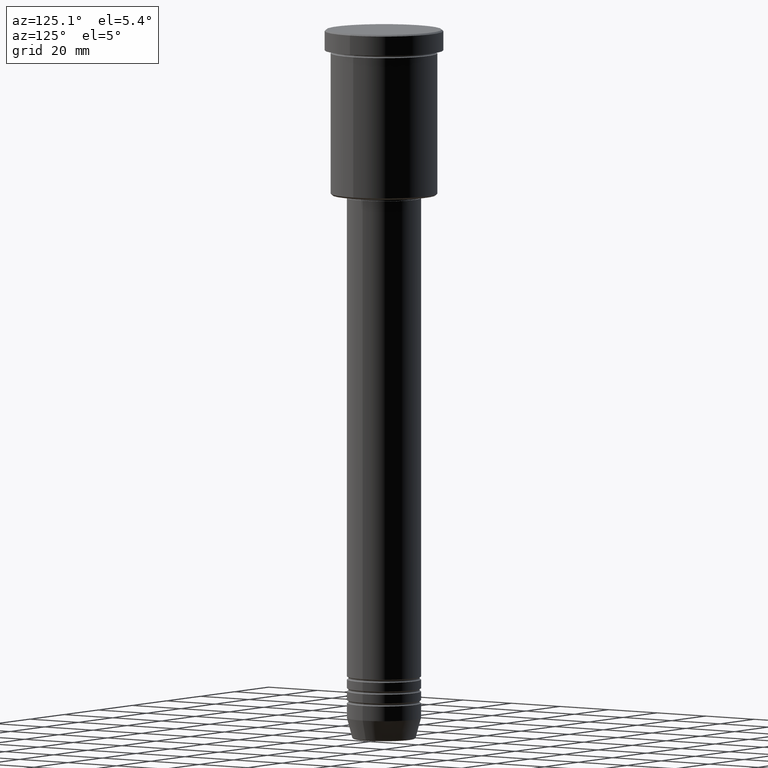
[diagram: clean part render]
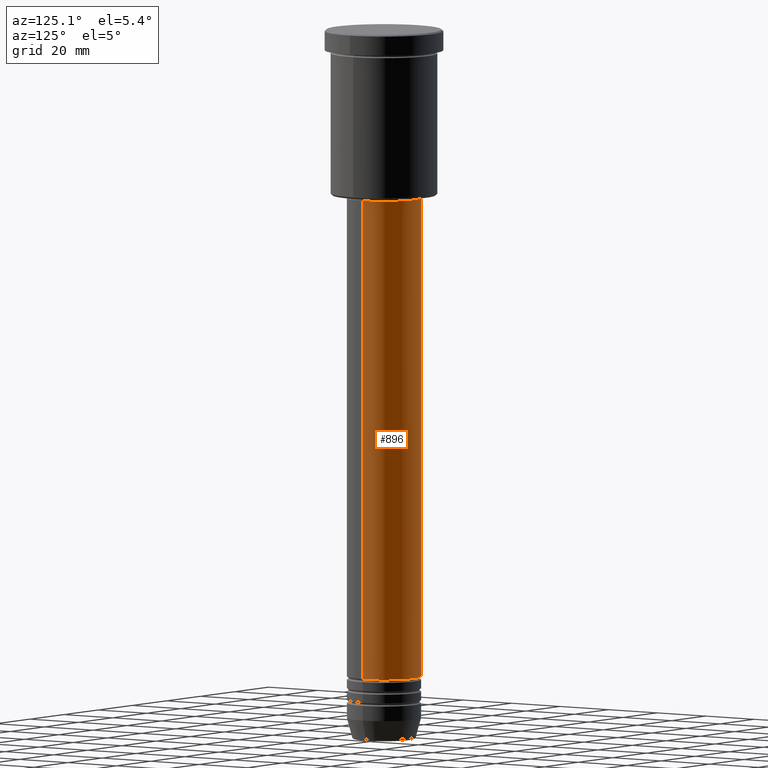
[diagram: same view with one face highlighted and labeled with its STEP entity id]
A machine part, auxiliary view. The second image highlights one B-rep face of the part: STEP entity #896.
In plain terms, the highlighted cylindrical surface (partial cylindrical patch) has radius 12.5 mm, axis along (-0, -0, 1).
Its self-contained STEP definition (entity closure, byte-faithful):
#1 = VERTEX_POINT ( 'NONE', #31 ) ;
#31 = CARTESIAN_POINT ( 'NONE',  ( -12.50000000000000000, 1.530808498934191521E-15, -57.00000000000002842 ) ) ;
#49 = EDGE_LOOP ( 'NONE', ( #733, #1107, #1129, #211 ) ) ;
#88 = DIRECTION ( 'NONE',  ( 1.000000000000000000, 0.000000000000000000, 0.000000000000000000 ) ) ;
#144 = CARTESIAN_POINT ( 'NONE',  ( 12.50000000000000000, 0.000000000000000000, 0.000000000000000000 ) ) ;
#153 = VERTEX_POINT ( 'NONE', #1064 ) ;
#211 = ORIENTED_EDGE ( 'NONE', *, *, #457, .F. ) ;
#273 = CIRCLE ( 'NONE', #321, 12.50000000000000000 ) ;
#282 = EDGE_CURVE ( 'NONE', #1099, #153, #273, .T. ) ;
#284 = CARTESIAN_POINT ( 'NONE',  ( 0.000000000000000000, 0.000000000000000000, 0.000000000000000000 ) ) ;
#288 = AXIS2_PLACEMENT_3D ( 'NONE', #284, #712, #1074 ) ;
#307 = DIRECTION ( 'NONE',  ( 1.000000000000000000, 0.000000000000000000, 0.000000000000000000 ) ) ;
#321 = AXIS2_PLACEMENT_3D ( 'NONE', #403, #854, #307 ) ;
#355 = AXIS2_PLACEMENT_3D ( 'NONE', #1170, #897, #88 ) ;
#403 = CARTESIAN_POINT ( 'NONE',  ( 0.000000000000000000, 0.000000000000000000, -219.0000000000000000 ) ) ;
#424 = CARTESIAN_POINT ( 'NONE',  ( 12.50000000000000000, 0.000000000000000000, -57.00000000000002842 ) ) ;
#457 = EDGE_CURVE ( 'NONE', #1099, #999, #631, .T. ) ;
#475 = CYLINDRICAL_SURFACE ( 'NONE', #288, 12.50000000000000000 ) ;
#520 = DIRECTION ( 'NONE',  ( -0.000000000000000000, -0.000000000000000000, 1.000000000000000000 ) ) ;
#599 = CIRCLE ( 'NONE', #355, 12.50000000000000000 ) ;
#631 = LINE ( 'NONE', #144, #824 ) ;
#656 = CARTESIAN_POINT ( 'NONE',  ( -12.50000000000000000, 1.530808498934191521E-15, 0.000000000000000000 ) ) ;
#688 = CARTESIAN_POINT ( 'NONE',  ( 12.50000000000000000, 0.000000000000000000, -219.0000000000000000 ) ) ;
#712 = DIRECTION ( 'NONE',  ( -0.000000000000000000, -0.000000000000000000, 1.000000000000000000 ) ) ;
#733 = ORIENTED_EDGE ( 'NONE', *, *, #282, .T. ) ;
#824 = VECTOR ( 'NONE', #837, 1000.000000000000000 ) ;
#837 = DIRECTION ( 'NONE',  ( -0.000000000000000000, -0.000000000000000000, 1.000000000000000000 ) ) ;
#854 = DIRECTION ( 'NONE',  ( -0.000000000000000000, -0.000000000000000000, 1.000000000000000000 ) ) ;
#896 = ADVANCED_FACE ( 'NONE', ( #978 ), #475, .T. ) ;
#897 = DIRECTION ( 'NONE',  ( -0.000000000000000000, -0.000000000000000000, 1.000000000000000000 ) ) ;
#978 = FACE_OUTER_BOUND ( 'NONE', #49, .T. ) ;
#999 = VERTEX_POINT ( 'NONE', #424 ) ;
#1064 = CARTESIAN_POINT ( 'NONE',  ( -12.50000000000000000, 1.530808498934191521E-15, -219.0000000000000000 ) ) ;
#1074 = DIRECTION ( 'NONE',  ( 1.000000000000000000, 0.000000000000000000, 0.000000000000000000 ) ) ;
#1078 = EDGE_CURVE ( 'NONE', #999, #1, #599, .T. ) ;
#1099 = VERTEX_POINT ( 'NONE', #688 ) ;
#1107 = ORIENTED_EDGE ( 'NONE', *, *, #1133, .T. ) ;
#1125 = LINE ( 'NONE', #656, #1169 ) ;
#1129 = ORIENTED_EDGE ( 'NONE', *, *, #1078, .F. ) ;
#1133 = EDGE_CURVE ( 'NONE', #153, #1, #1125, .T. ) ;
#1169 = VECTOR ( 'NONE', #520, 1000.000000000000000 ) ;
#1170 = CARTESIAN_POINT ( 'NONE',  ( 0.000000000000000000, 0.000000000000000000, -57.00000000000002842 ) ) ;